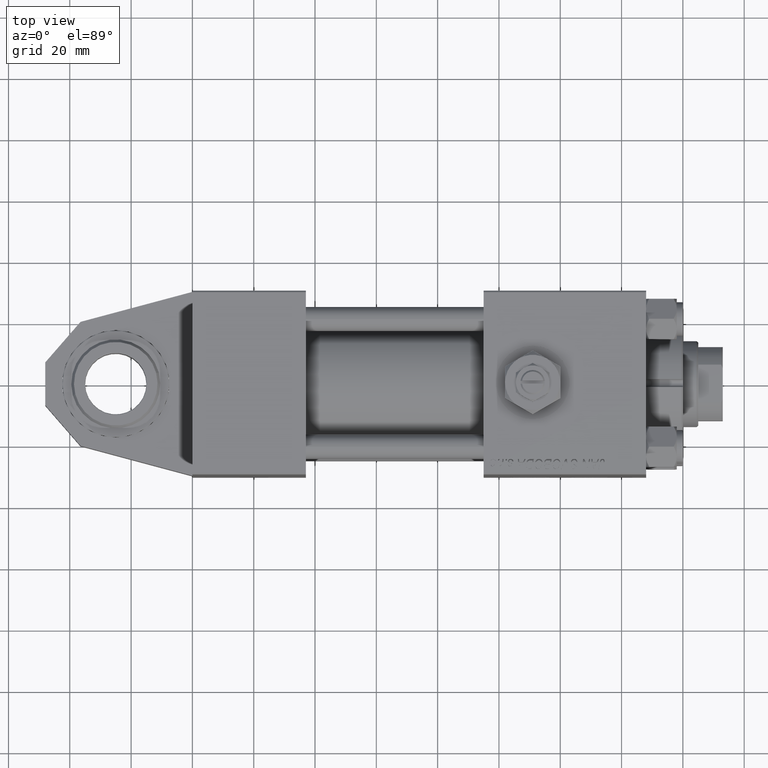
[diagram: clean part render]
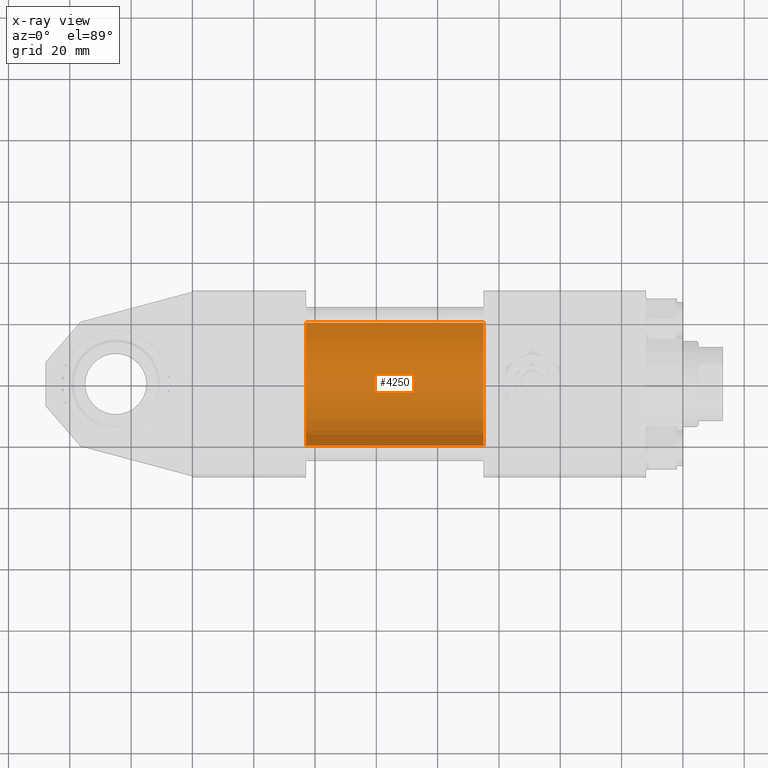
[diagram: x-ray — body ghosted, one internal face saturated and labeled with its STEP entity id]
A machine part, top view, then the same camera in x-ray: the body is ghosted and one INTERNAL B-rep face — a face not visible from any outside direction — is saturated and labeled: STEP entity #4250.
In plain terms, the highlighted cylindrical surface (partial cylindrical patch) has radius 20 mm, axis along (-1, 0, -0).
Its self-contained STEP definition (entity closure, byte-faithful):
#1001 = CARTESIAN_POINT ( 'NONE',  ( 95.00000000000000000, -2.602085213965210642E-15, 20.00000000000000000 ) ) ;
#2060 = DIRECTION ( 'NONE',  ( 0.000000000000000000, 0.000000000000000000, -1.000000000000000000 ) ) ;
#3320 = CARTESIAN_POINT ( 'NONE',  ( 37.00000000000000000, -2.602085213965210642E-15, 20.00000000000000000 ) ) ;
#4250 = ADVANCED_FACE ( 'NONE', ( #42523 ), #34623, .F. ) ;
#5477 = LINE ( 'NONE', #1001, #19604 ) ;
#6381 = CIRCLE ( 'NONE', #9735, 20.00000000000000000 ) ;
#8326 = LINE ( 'NONE', #24389, #10344 ) ;
#8652 = AXIS2_PLACEMENT_3D ( 'NONE', #30694, #42777, #32248 ) ;
#9109 = ORIENTED_EDGE ( 'NONE', *, *, #14633, .T. ) ;
#9735 = AXIS2_PLACEMENT_3D ( 'NONE', #46029, #49973, #2060 ) ;
#10344 = VECTOR ( 'NONE', #40402, 1000.000000000000000 ) ;
#12496 = CARTESIAN_POINT ( 'NONE',  ( 37.00000000000000000, -1.527916156705046464E-16, -20.00000000000000000 ) ) ;
#14633 = EDGE_CURVE ( 'NONE', #19347, #44564, #6381, .T. ) ;
#18475 = EDGE_CURVE ( 'NONE', #44557, #35186, #48904, .T. ) ;
#19347 = VERTEX_POINT ( 'NONE', #27812 ) ;
#19399 = CARTESIAN_POINT ( 'NONE',  ( 95.00000000000000000, -1.527916156705046464E-16, -20.00000000000000000 ) ) ;
#19604 = VECTOR ( 'NONE', #21026, 1000.000000000000000 ) ;
#20452 = EDGE_CURVE ( 'NONE', #19347, #44557, #5477, .T. ) ;
#21026 = DIRECTION ( 'NONE',  ( -1.000000000000000000, -0.000000000000000000, -0.000000000000000000 ) ) ;
#23965 = EDGE_CURVE ( 'NONE', #44564, #35186, #8326, .T. ) ;
#24389 = CARTESIAN_POINT ( 'NONE',  ( 95.00000000000000000, -1.527916156705046464E-16, -20.00000000000000000 ) ) ;
#27812 = CARTESIAN_POINT ( 'NONE',  ( 95.00000000000000000, -2.602085213965210642E-15, 20.00000000000000000 ) ) ;
#28253 = EDGE_LOOP ( 'NONE', ( #9109, #35159, #48584, #30072 ) ) ;
#28324 = DIRECTION ( 'NONE',  ( 1.000000000000000000, 0.000000000000000000, 0.000000000000000000 ) ) ;
#30072 = ORIENTED_EDGE ( 'NONE', *, *, #20452, .F. ) ;
#30694 = CARTESIAN_POINT ( 'NONE',  ( 95.00000000000000000, -2.602085213965210642E-15, 0.000000000000000000 ) ) ;
#31757 = CARTESIAN_POINT ( 'NONE',  ( 37.00000000000000000, -2.602085213965210642E-15, 0.000000000000000000 ) ) ;
#32248 = DIRECTION ( 'NONE',  ( 0.000000000000000000, 0.000000000000000000, 1.000000000000000000 ) ) ;
#34623 = CYLINDRICAL_SURFACE ( 'NONE', #8652, 20.00000000000000000 ) ;
#35159 = ORIENTED_EDGE ( 'NONE', *, *, #23965, .T. ) ;
#35186 = VERTEX_POINT ( 'NONE', #12496 ) ;
#38821 = AXIS2_PLACEMENT_3D ( 'NONE', #31757, #28324, #40658 ) ;
#40402 = DIRECTION ( 'NONE',  ( -1.000000000000000000, -0.000000000000000000, -0.000000000000000000 ) ) ;
#40658 = DIRECTION ( 'NONE',  ( 0.000000000000000000, 0.000000000000000000, -1.000000000000000000 ) ) ;
#42523 = FACE_OUTER_BOUND ( 'NONE', #28253, .T. ) ;
#42777 = DIRECTION ( 'NONE',  ( -1.000000000000000000, -0.000000000000000000, -0.000000000000000000 ) ) ;
#44557 = VERTEX_POINT ( 'NONE', #3320 ) ;
#44564 = VERTEX_POINT ( 'NONE', #19399 ) ;
#46029 = CARTESIAN_POINT ( 'NONE',  ( 95.00000000000000000, -2.602085213965210642E-15, 0.000000000000000000 ) ) ;
#48584 = ORIENTED_EDGE ( 'NONE', *, *, #18475, .F. ) ;
#48904 = CIRCLE ( 'NONE', #38821, 20.00000000000000000 ) ;
#49973 = DIRECTION ( 'NONE',  ( 1.000000000000000000, 0.000000000000000000, 0.000000000000000000 ) ) ;